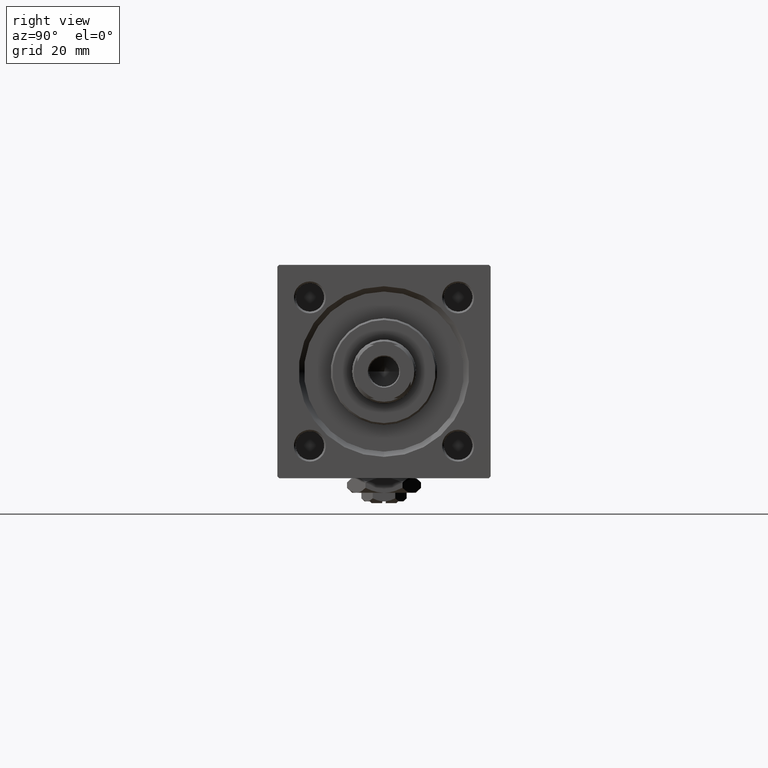
[diagram: clean part render]
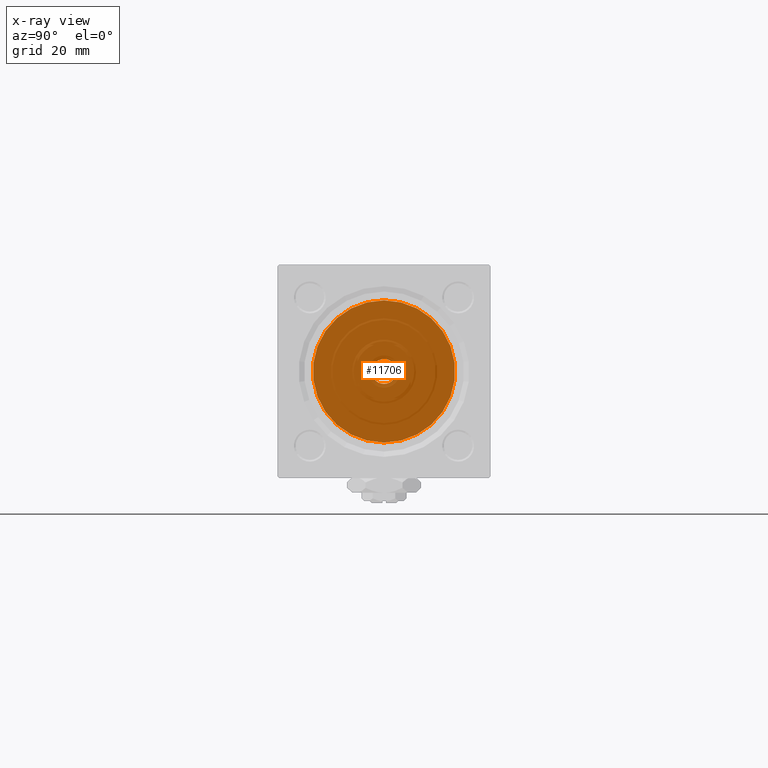
[diagram: x-ray — body ghosted, one internal face saturated and labeled with its STEP entity id]
A machine part, right view, then the same camera in x-ray: the body is ghosted and one INTERNAL B-rep face — a face not visible from any outside direction — is saturated and labeled: STEP entity #11706.
In plain terms, the highlighted planar face has unit normal (-1, 0, 0).
Its self-contained STEP definition (entity closure, byte-faithful):
#317 = VERTEX_POINT ( 'NONE', #48078 ) ;
#1913 = AXIS2_PLACEMENT_3D ( 'NONE', #23088, #15698, #35278 ) ;
#2793 = ORIENTED_EDGE ( 'NONE', *, *, #15988, .T. ) ;
#3902 = DIRECTION ( 'NONE',  ( 0.000000000000000000, 0.000000000000000000, 1.000000000000000000 ) ) ;
#4694 = DIRECTION ( 'NONE',  ( 1.000000000000000000, 0.000000000000000000, 0.000000000000000000 ) ) ;
#5117 = CARTESIAN_POINT ( 'NONE',  ( 37.00000000000000000, -2.602085213965210642E-15, 20.00000000000000000 ) ) ;
#8405 = AXIS2_PLACEMENT_3D ( 'NONE', #20001, #43302, #3902 ) ;
#8580 = VERTEX_POINT ( 'NONE', #5117 ) ;
#9984 = DIRECTION ( 'NONE',  ( 1.000000000000000000, 0.000000000000000000, 0.000000000000000000 ) ) ;
#11706 = ADVANCED_FACE ( 'NONE', ( #51403, #47178 ), #35015, .F. ) ;
#15698 = DIRECTION ( 'NONE',  ( -1.000000000000000000, 0.000000000000000000, -0.000000000000000000 ) ) ;
#15988 = EDGE_CURVE ( 'NONE', #19726, #46750, #37364, .T. ) ;
#16008 = EDGE_CURVE ( 'NONE', #317, #8580, #28057, .T. ) ;
#16332 = CARTESIAN_POINT ( 'NONE',  ( 37.00000000000000000, -2.602085213965210642E-15, 0.000000000000000000 ) ) ;
#16804 = CARTESIAN_POINT ( 'NONE',  ( 37.00000000000000711, 4.286263797015736595E-16, -3.500000000000000000 ) ) ;
#19129 = CIRCLE ( 'NONE', #39411, 20.00000000000000000 ) ;
#19667 = ORIENTED_EDGE ( 'NONE', *, *, #16008, .T. ) ;
#19726 = VERTEX_POINT ( 'NONE', #16804 ) ;
#20001 = CARTESIAN_POINT ( 'NONE',  ( 37.00000000000000711, 0.000000000000000000, 0.000000000000000000 ) ) ;
#21306 = AXIS2_PLACEMENT_3D ( 'NONE', #32202, #36432, #44358 ) ;
#21743 = CARTESIAN_POINT ( 'NONE',  ( 37.00000000000000711, 0.000000000000000000, 3.500000000000000000 ) ) ;
#23088 = CARTESIAN_POINT ( 'NONE',  ( 37.00000000000000000, 0.000000000000000000, 0.000000000000000000 ) ) ;
#25541 = AXIS2_PLACEMENT_3D ( 'NONE', #16332, #4694, #36951 ) ;
#26088 = DIRECTION ( 'NONE',  ( 0.000000000000000000, 0.000000000000000000, -1.000000000000000000 ) ) ;
#28057 = CIRCLE ( 'NONE', #25541, 20.00000000000000000 ) ;
#29691 = EDGE_CURVE ( 'NONE', #8580, #317, #19129, .T. ) ;
#30053 = CARTESIAN_POINT ( 'NONE',  ( 37.00000000000000000, -2.602085213965210642E-15, 0.000000000000000000 ) ) ;
#30239 = ORIENTED_EDGE ( 'NONE', *, *, #29691, .T. ) ;
#32202 = CARTESIAN_POINT ( 'NONE',  ( 37.00000000000000711, 0.000000000000000000, 0.000000000000000000 ) ) ;
#35015 = PLANE ( 'NONE',  #1913 ) ;
#35278 = DIRECTION ( 'NONE',  ( -0.000000000000000000, 0.000000000000000000, 1.000000000000000000 ) ) ;
#36432 = DIRECTION ( 'NONE',  ( -1.000000000000000000, 0.000000000000000000, -0.000000000000000000 ) ) ;
#36951 = DIRECTION ( 'NONE',  ( 0.000000000000000000, 0.000000000000000000, -1.000000000000000000 ) ) ;
#37364 = CIRCLE ( 'NONE', #21306, 3.500000000000000000 ) ;
#38781 = CIRCLE ( 'NONE', #8405, 3.500000000000000000 ) ;
#39411 = AXIS2_PLACEMENT_3D ( 'NONE', #30053, #9984, #26088 ) ;
#43302 = DIRECTION ( 'NONE',  ( -1.000000000000000000, 0.000000000000000000, -0.000000000000000000 ) ) ;
#43359 = ORIENTED_EDGE ( 'NONE', *, *, #47032, .T. ) ;
#43475 = EDGE_LOOP ( 'NONE', ( #30239, #19667 ) ) ;
#44358 = DIRECTION ( 'NONE',  ( 0.000000000000000000, 0.000000000000000000, 1.000000000000000000 ) ) ;
#46750 = VERTEX_POINT ( 'NONE', #21743 ) ;
#47032 = EDGE_CURVE ( 'NONE', #46750, #19726, #38781, .T. ) ;
#47178 = FACE_OUTER_BOUND ( 'NONE', #43475, .T. ) ;
#48078 = CARTESIAN_POINT ( 'NONE',  ( 37.00000000000000000, -1.527916156705046464E-16, -20.00000000000000000 ) ) ;
#50361 = EDGE_LOOP ( 'NONE', ( #43359, #2793 ) ) ;
#51403 = FACE_BOUND ( 'NONE', #50361, .T. ) ;